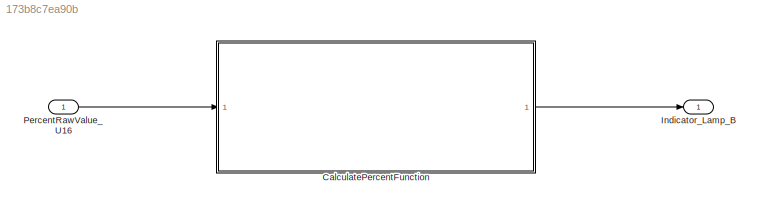
MODEL slx_173b8c7ea90b
KIND model
CONFIG AbsTol = auto
CONFIG EnableMultiTasking = off
CONFIG FixedStep = 0.001
CONFIG MaxStep = auto
CONFIG MinStep = auto
CONFIG RelTol = 1e-3
CONFIG SampleTimeConstraint = Unconstrained
CONFIG SolverName = FixedStepDiscrete
CONFIG StartTime = 0.0
CONFIG StopTime = 10.0
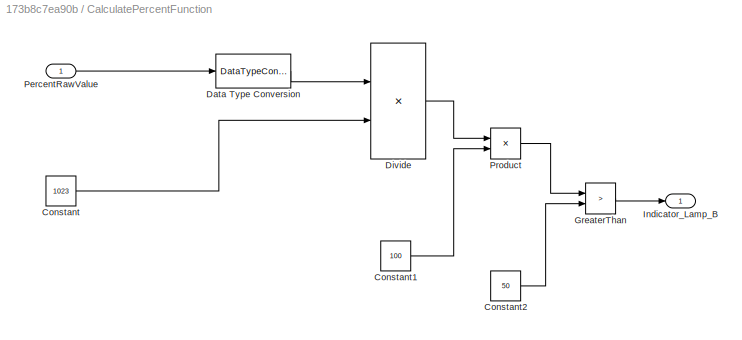
BLOCK [SubSystem] CalculatePercentFunction
  RTWFcnNameOpts = Use subsystem name
  RTWFileNameOpts = Use subsystem name
  RTWSystemCode = Reusable function
  TreatAsAtomicUnit = on
BLOCK [Constant] CalculatePercentFunction/Constant
  OutDataTypeStr = single
  Value = 1023
BLOCK [Constant] CalculatePercentFunction/Constant1
  OutDataTypeStr = uint8
  Value = 100
BLOCK [Constant] CalculatePercentFunction/Constant2
  OutDataTypeStr = uint8
  Value = 50
BLOCK [DataTypeConversion] CalculatePercentFunction/Data Type Conversion
  OutDataTypeStr = single
  RndMeth = Floor
  SaturateOnIntegerOverflow = off
BLOCK [Product] CalculatePercentFunction/Divide
  Inputs = */
BLOCK [RelationalOperator] CalculatePercentFunction/GreaterThan
  InputSameDT = off
  Operator = >
  OutDataTypeStr = boolean
  RndMeth = Simplest
BLOCK [Outport] CalculatePercentFunction/Indicator_Lamp_B
  OutDataTypeStr = boolean
BLOCK [Inport] CalculatePercentFunction/PercentRawValue
BLOCK [Product] CalculatePercentFunction/Product
BLOCK [Outport] Indicator_Lamp_B
  OutDataTypeStr = boolean
BLOCK [Inport] PercentRawValue_U16
LINE CalculatePercentFunction/Constant1:1 -> CalculatePercentFunction/Product:2
LINE CalculatePercentFunction/Constant2:1 -> CalculatePercentFunction/GreaterThan:2
LINE CalculatePercentFunction/Constant:1 -> CalculatePercentFunction/Divide:2
LINE CalculatePercentFunction/Data Type Conversion:1 -> CalculatePercentFunction/Divide:1
LINE CalculatePercentFunction/Divide:1 -> CalculatePercentFunction/Product:1
LINE CalculatePercentFunction/GreaterThan:1 -> CalculatePercentFunction/Indicator_Lamp_B:1
LINE CalculatePercentFunction/PercentRawValue:1 -> CalculatePercentFunction/Data Type Conversion:1
LINE CalculatePercentFunction/Product:1 -> CalculatePercentFunction/GreaterThan:1
LINE CalculatePercentFunction:1 -> Indicator_Lamp_B:1
LINE PercentRawValue_U16:1 -> CalculatePercentFunction:1
